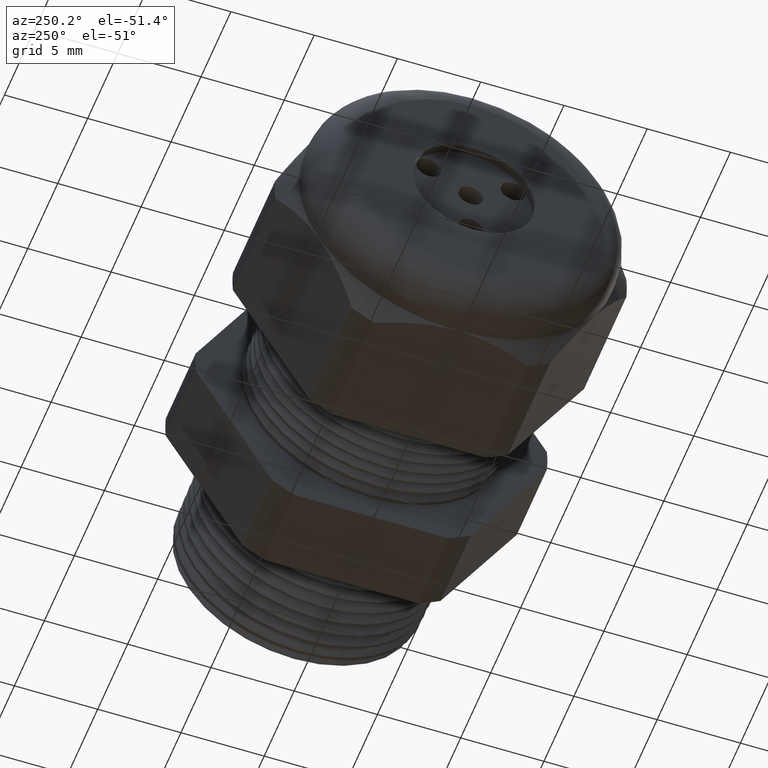
[diagram: clean part render]
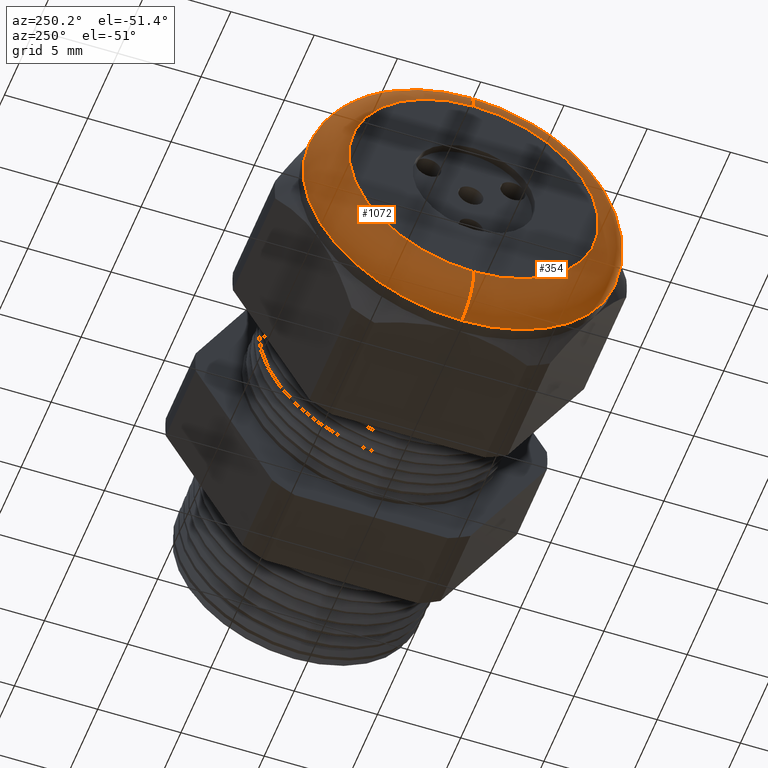
[diagram: same view with one multi-face feature highlighted, each face labeled with its STEP entity id]
A machine part, auxiliary view. The highlighted faces form ONE feature: a constant-radius fillet chain: 2 tangent blend faces with common blend radius 2.032 mm. The faces share edges in the B-rep.
Their STEP definitions:
[1] entity #354 (Torus):
#201 = EDGE_CURVE ( 'NONE', #1170, #1173, #1804, .T. ) ;
#209 = EDGE_CURVE ( 'NONE', #1148, #1070, #1797, .T. ) ;
#354 = ADVANCED_FACE ( 'NONE', ( #2065 ), #2064, .T. ) ;
#355 = EDGE_LOOP ( 'NONE', ( #356, #357, #358, #359 ) ) ;
#356 = ORIENTED_EDGE ( 'NONE', *, *, #1169, .F. ) ;
#357 = ORIENTED_EDGE ( 'NONE', *, *, #209, .F. ) ;
#358 = ORIENTED_EDGE ( 'NONE', *, *, #1175, .T. ) ;
#359 = ORIENTED_EDGE ( 'NONE', *, *, #201, .F. ) ;
#1070 = VERTEX_POINT ( 'NONE', #3196 ) ;
#1148 = VERTEX_POINT ( 'NONE', #3356 ) ;
#1169 = EDGE_CURVE ( 'NONE', #1070, #1170, #3444, .T. ) ;
#1170 = VERTEX_POINT ( 'NONE', #3435 ) ;
#1173 = VERTEX_POINT ( 'NONE', #3429 ) ;
#1175 = EDGE_CURVE ( 'NONE', #1148, #1173, #3428, .T. ) ;
#1789 = DIRECTION ( 'NONE',  ( 0.0000000000000000000, 0.0000000000000000000, 1.000000000000000000 ) ) ;
#1790 = DIRECTION ( 'NONE',  ( 1.000000000000000000, 0.0000000000000000000, 0.0000000000000000000 ) ) ;
#1791 = CARTESIAN_POINT ( 'NONE',  ( -1.100000000000000100, 0.0000000000000000000, 0.0000000000000000000 ) ) ;
#1792 = AXIS2_PLACEMENT_3D ( 'NONE', #1791, #1790, #1789 ) ;
#1797 = CIRCLE ( 'NONE', #1792, 0.3750000000000001100 ) ;
#1800 = DIRECTION ( 'NONE',  ( 0.0000000000000000000, 0.0000000000000000000, 1.000000000000000000 ) ) ;
#1801 = DIRECTION ( 'NONE',  ( -1.000000000000000000, 0.0000000000000000000, 0.0000000000000000000 ) ) ;
#1802 = CARTESIAN_POINT ( 'NONE',  ( -1.179999999999999900, 0.0000000000000000000, 0.0000000000000000000 ) ) ;
#1803 = AXIS2_PLACEMENT_3D ( 'NONE', #1802, #1801, #1800 ) ;
#1804 = CIRCLE ( 'NONE', #1803, 0.2950000000000001000 ) ;
#2061 = DIRECTION ( 'NONE',  ( 0.0000000000000000000, 0.0000000000000000000, 1.000000000000000000 ) ) ;
#2062 = DIRECTION ( 'NONE',  ( -1.000000000000000000, 0.0000000000000000000, 0.0000000000000000000 ) ) ;
#2063 = AXIS2_PLACEMENT_3D ( 'NONE', #2070, #2062, #2061 ) ;
#2064 = TOROIDAL_SURFACE ( 'NONE', #2063, 0.2950000000000001000, 0.08000000000000000200 ) ;
#2065 = FACE_OUTER_BOUND ( 'NONE', #355, .T. ) ;
#2070 = CARTESIAN_POINT ( 'NONE',  ( -1.100000000000000100, 0.0000000000000000000, 0.0000000000000000000 ) ) ;
#3196 = CARTESIAN_POINT ( 'NONE',  ( -1.100000000000000100, 0.0000000000000000000, -0.3750000000000001100 ) ) ;
#3356 = CARTESIAN_POINT ( 'NONE',  ( -1.100000000000000100, 4.592425496802576100E-017, 0.3750000000000001100 ) ) ;
#3424 = DIRECTION ( 'NONE',  ( 0.0000000000000000000, 0.0000000000000000000, -1.000000000000000000 ) ) ;
#3425 = DIRECTION ( 'NONE',  ( 0.0000000000000000000, -1.000000000000000000, 0.0000000000000000000 ) ) ;
#3426 = CARTESIAN_POINT ( 'NONE',  ( -1.100000000000000100, 0.0000000000000000000, 0.2950000000000001000 ) ) ;
#3427 = AXIS2_PLACEMENT_3D ( 'NONE', #3426, #3425, #3424 ) ;
#3428 = CIRCLE ( 'NONE', #3427, 0.08000000000000000200 ) ;
#3429 = CARTESIAN_POINT ( 'NONE',  ( -1.179999999999999900, 0.0000000000000000000, 0.2950000000000001000 ) ) ;
#3435 = CARTESIAN_POINT ( 'NONE',  ( -1.179999999999999900, 4.102566777143634000E-017, -0.2950000000000001000 ) ) ;
#3436 = DIRECTION ( 'NONE',  ( 0.0000000000000000000, -1.224646799147353500E-016, 1.000000000000000000 ) ) ;
#3437 = DIRECTION ( 'NONE',  ( 0.0000000000000000000, 1.000000000000000000, 1.224646799147353200E-016 ) ) ;
#3438 = CARTESIAN_POINT ( 'NONE',  ( -1.100000000000000100, 3.612708057484693200E-017, -0.2950000000000001000 ) ) ;
#3439 = AXIS2_PLACEMENT_3D ( 'NONE', #3438, #3437, #3436 ) ;
#3444 = CIRCLE ( 'NONE', #3439, 0.08000000000000000200 ) ;
[2] entity #1072 (Torus):
#1068 = ORIENTED_EDGE ( 'NONE', *, *, #1069, .F. ) ;
#1069 = EDGE_CURVE ( 'NONE', #1070, #1148, #3201, .T. ) ;
#1070 = VERTEX_POINT ( 'NONE', #3196 ) ;
#1072 = ADVANCED_FACE ( 'NONE', ( #3255 ), #3253, .T. ) ;
#1073 = EDGE_LOOP ( 'NONE', ( #1068, #1149, #1171, #1174 ) ) ;
#1148 = VERTEX_POINT ( 'NONE', #3356 ) ;
#1149 = ORIENTED_EDGE ( 'NONE', *, *, #1169, .T. ) ;
#1169 = EDGE_CURVE ( 'NONE', #1070, #1170, #3444, .T. ) ;
#1170 = VERTEX_POINT ( 'NONE', #3435 ) ;
#1171 = ORIENTED_EDGE ( 'NONE', *, *, #1172, .F. ) ;
#1172 = EDGE_CURVE ( 'NONE', #1173, #1170, #3434, .T. ) ;
#1173 = VERTEX_POINT ( 'NONE', #3429 ) ;
#1174 = ORIENTED_EDGE ( 'NONE', *, *, #1175, .F. ) ;
#1175 = EDGE_CURVE ( 'NONE', #1148, #1173, #3428, .T. ) ;
#3196 = CARTESIAN_POINT ( 'NONE',  ( -1.100000000000000100, 0.0000000000000000000, -0.3750000000000001100 ) ) ;
#3197 = DIRECTION ( 'NONE',  ( 0.0000000000000000000, 0.0000000000000000000, 1.000000000000000000 ) ) ;
#3198 = DIRECTION ( 'NONE',  ( 1.000000000000000000, 0.0000000000000000000, 0.0000000000000000000 ) ) ;
#3199 = CARTESIAN_POINT ( 'NONE',  ( -1.100000000000000100, 0.0000000000000000000, 0.0000000000000000000 ) ) ;
#3200 = AXIS2_PLACEMENT_3D ( 'NONE', #3199, #3198, #3197 ) ;
#3201 = CIRCLE ( 'NONE', #3200, 0.3750000000000001100 ) ;
#3250 = DIRECTION ( 'NONE',  ( 0.0000000000000000000, 0.0000000000000000000, 1.000000000000000000 ) ) ;
#3251 = DIRECTION ( 'NONE',  ( -1.000000000000000000, 0.0000000000000000000, 0.0000000000000000000 ) ) ;
#3252 = AXIS2_PLACEMENT_3D ( 'NONE', #3254, #3251, #3250 ) ;
#3253 = TOROIDAL_SURFACE ( 'NONE', #3252, 0.2950000000000001000, 0.08000000000000000200 ) ;
#3254 = CARTESIAN_POINT ( 'NONE',  ( -1.100000000000000100, 0.0000000000000000000, 0.0000000000000000000 ) ) ;
#3255 = FACE_OUTER_BOUND ( 'NONE', #1073, .T. ) ;
#3356 = CARTESIAN_POINT ( 'NONE',  ( -1.100000000000000100, 4.592425496802576100E-017, 0.3750000000000001100 ) ) ;
#3424 = DIRECTION ( 'NONE',  ( 0.0000000000000000000, 0.0000000000000000000, -1.000000000000000000 ) ) ;
#3425 = DIRECTION ( 'NONE',  ( 0.0000000000000000000, -1.000000000000000000, 0.0000000000000000000 ) ) ;
#3426 = CARTESIAN_POINT ( 'NONE',  ( -1.100000000000000100, 0.0000000000000000000, 0.2950000000000001000 ) ) ;
#3427 = AXIS2_PLACEMENT_3D ( 'NONE', #3426, #3425, #3424 ) ;
#3428 = CIRCLE ( 'NONE', #3427, 0.08000000000000000200 ) ;
#3429 = CARTESIAN_POINT ( 'NONE',  ( -1.179999999999999900, 0.0000000000000000000, 0.2950000000000001000 ) ) ;
#3430 = DIRECTION ( 'NONE',  ( 0.0000000000000000000, 0.0000000000000000000, 1.000000000000000000 ) ) ;
#3431 = DIRECTION ( 'NONE',  ( -1.000000000000000000, 0.0000000000000000000, 0.0000000000000000000 ) ) ;
#3432 = CARTESIAN_POINT ( 'NONE',  ( -1.179999999999999900, 0.0000000000000000000, 0.0000000000000000000 ) ) ;
#3433 = AXIS2_PLACEMENT_3D ( 'NONE', #3432, #3431, #3430 ) ;
#3434 = CIRCLE ( 'NONE', #3433, 0.2950000000000001000 ) ;
#3435 = CARTESIAN_POINT ( 'NONE',  ( -1.179999999999999900, 4.102566777143634000E-017, -0.2950000000000001000 ) ) ;
#3436 = DIRECTION ( 'NONE',  ( 0.0000000000000000000, -1.224646799147353500E-016, 1.000000000000000000 ) ) ;
#3437 = DIRECTION ( 'NONE',  ( 0.0000000000000000000, 1.000000000000000000, 1.224646799147353200E-016 ) ) ;
#3438 = CARTESIAN_POINT ( 'NONE',  ( -1.100000000000000100, 3.612708057484693200E-017, -0.2950000000000001000 ) ) ;
#3439 = AXIS2_PLACEMENT_3D ( 'NONE', #3438, #3437, #3436 ) ;
#3444 = CIRCLE ( 'NONE', #3439, 0.08000000000000000200 ) ;